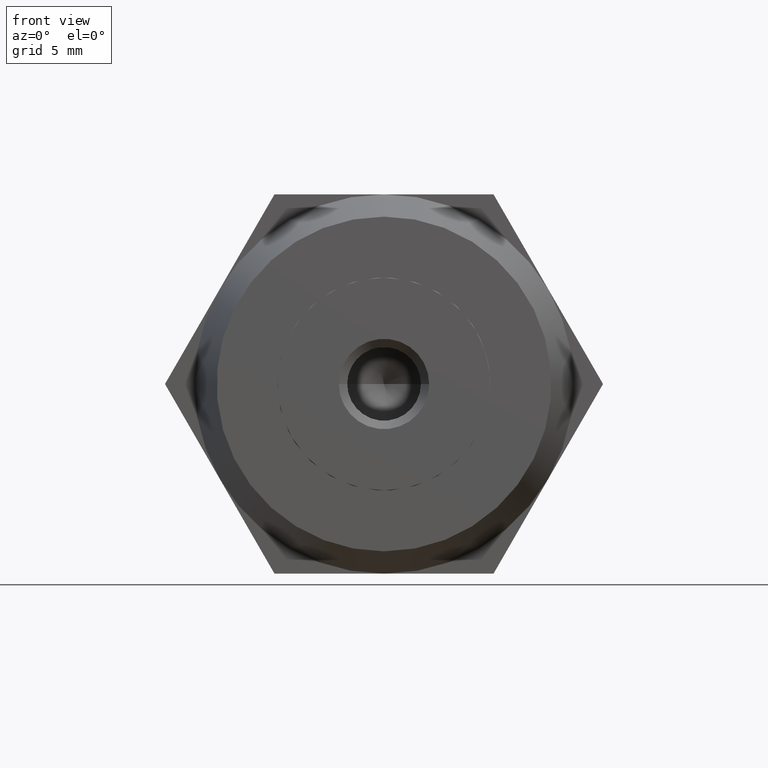
[diagram: clean part render]
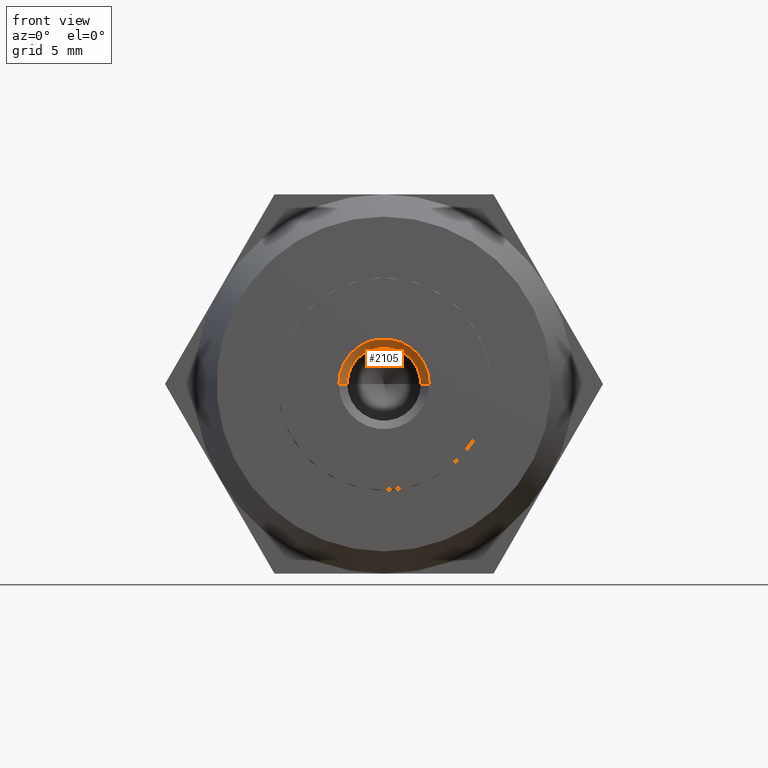
[diagram: same view with one face highlighted and labeled with its STEP entity id]
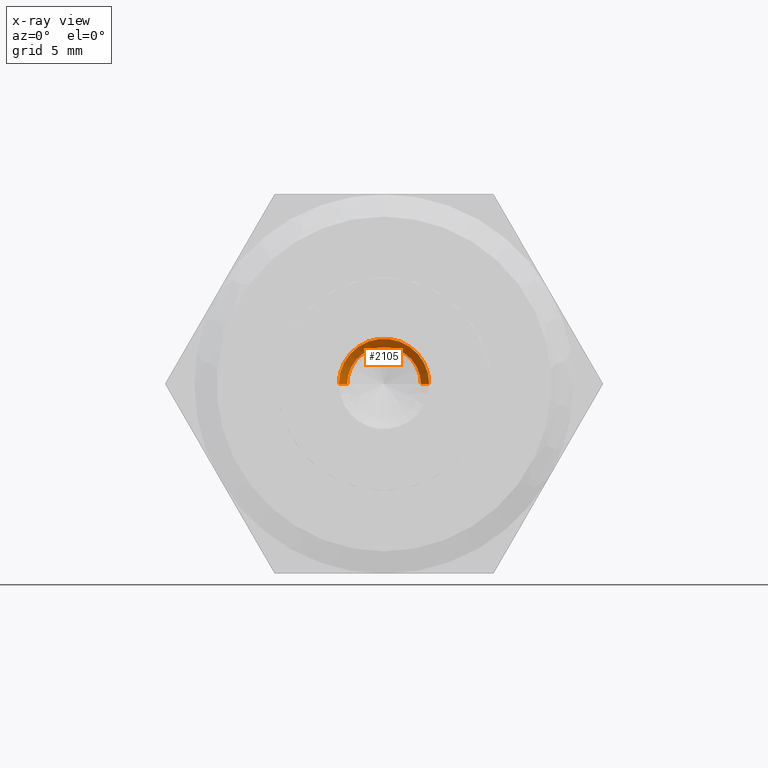
[diagram: x-ray of the same camera — body ghosted, the highlighted face saturated]
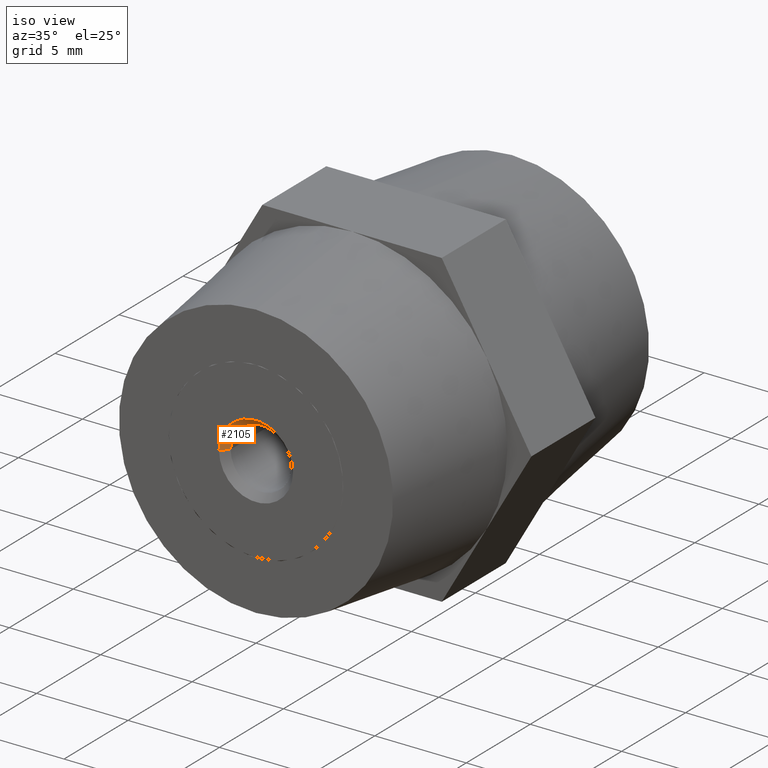
[diagram: same view with one face highlighted and labeled with its STEP entity id]
A machine part, front view. The second image highlights one B-rep face of the part: STEP entity #2105.
The next image is the same camera in x-ray: the body ghosted, the highlighted face saturated — about 0% of this face is hidden behind the body in this view.
A second angle (iso view) of the same face is appended — the face is thin or edge-on in the first view.
In plain terms, the highlighted conical surface has half-angle 45 deg.
Its self-contained STEP definition (entity closure, byte-faithful):
#78 = CARTESIAN_POINT ( 'NONE',  ( 0.0000000000000000000, 6.500000000000000000, 2.024999999999999900 ) ) ;
#82 = CARTESIAN_POINT ( 'NONE',  ( 2.479909768273389800E-016, 6.500000000000000000, -2.024999999999999900 ) ) ;
#103 = DIRECTION ( 'NONE',  ( 0.0000000000000000000, 0.7071067811865470200, 0.7071067811865480200 ) ) ;
#140 = DIRECTION ( 'NONE',  ( 0.0000000000000000000, 0.0000000000000000000, 1.000000000000000000 ) ) ;
#224 = FACE_OUTER_BOUND ( 'NONE', #770, .T. ) ;
#246 = DIRECTION ( 'NONE',  ( 0.0000000000000000000, 0.0000000000000000000, 1.000000000000000000 ) ) ;
#521 = EDGE_CURVE ( 'NONE', #2975, #1603, #1273, .T. ) ;
#567 = VERTEX_POINT ( 'NONE', #2158 ) ;
#770 = EDGE_LOOP ( 'NONE', ( #1065, #2261, #1220, #3234 ) ) ;
#853 = VECTOR ( 'NONE', #103, 1000.000000000000000 ) ;
#873 = CARTESIAN_POINT ( 'NONE',  ( 0.0000000000000000000, 6.125000000000000000, 1.649999999999999900 ) ) ;
#1065 = ORIENTED_EDGE ( 'NONE', *, *, #521, .F. ) ;
#1114 = EDGE_CURVE ( 'NONE', #2598, #2975, #1166, .T. ) ;
#1166 = CIRCLE ( 'NONE', #2487, 1.649999999999999900 ) ;
#1220 = ORIENTED_EDGE ( 'NONE', *, *, #3073, .T. ) ;
#1273 = LINE ( 'NONE', #82, #2401 ) ;
#1310 = CARTESIAN_POINT ( 'NONE',  ( 0.0000000000000000000, 6.500000000000000000, 0.0000000000000000000 ) ) ;
#1315 = DIRECTION ( 'NONE',  ( 0.0000000000000000000, 1.000000000000000000, 0.0000000000000000000 ) ) ;
#1525 = CARTESIAN_POINT ( 'NONE',  ( 2.020667218593132800E-016, 6.125000000000000000, -1.649999999999999900 ) ) ;
#1603 = VERTEX_POINT ( 'NONE', #1660 ) ;
#1644 = AXIS2_PLACEMENT_3D ( 'NONE', #3855, #3589, #246 ) ;
#1653 = LINE ( 'NONE', #78, #853 ) ;
#1658 = DIRECTION ( 'NONE',  ( 0.0000000000000000000, 1.000000000000000000, 0.0000000000000000000 ) ) ;
#1660 = CARTESIAN_POINT ( 'NONE',  ( 2.479909768273389800E-016, 6.500000000000000000, -2.024999999999999900 ) ) ;
#2105 = ADVANCED_FACE ( 'NONE', ( #224 ), #3748, .F. ) ;
#2158 = CARTESIAN_POINT ( 'NONE',  ( 0.0000000000000000000, 6.500000000000000000, 2.024999999999999900 ) ) ;
#2261 = ORIENTED_EDGE ( 'NONE', *, *, #1114, .F. ) ;
#2378 = AXIS2_PLACEMENT_3D ( 'NONE', #1310, #1658, #140 ) ;
#2401 = VECTOR ( 'NONE', #2776, 1000.000000000000000 ) ;
#2487 = AXIS2_PLACEMENT_3D ( 'NONE', #2555, #1315, #3432 ) ;
#2555 = CARTESIAN_POINT ( 'NONE',  ( 0.0000000000000000000, 6.125000000000000000, 0.0000000000000000000 ) ) ;
#2598 = VERTEX_POINT ( 'NONE', #873 ) ;
#2776 = DIRECTION ( 'NONE',  ( 8.659560562354939000E-017, 0.7071067811865470200, -0.7071067811865480200 ) ) ;
#2975 = VERTEX_POINT ( 'NONE', #1525 ) ;
#3073 = EDGE_CURVE ( 'NONE', #2598, #567, #1653, .T. ) ;
#3234 = ORIENTED_EDGE ( 'NONE', *, *, #3467, .T. ) ;
#3427 = CIRCLE ( 'NONE', #1644, 2.024999999999999900 ) ;
#3432 = DIRECTION ( 'NONE',  ( 0.0000000000000000000, 0.0000000000000000000, 1.000000000000000000 ) ) ;
#3467 = EDGE_CURVE ( 'NONE', #567, #1603, #3427, .T. ) ;
#3589 = DIRECTION ( 'NONE',  ( 0.0000000000000000000, 1.000000000000000000, 0.0000000000000000000 ) ) ;
#3748 = CONICAL_SURFACE ( 'NONE', #2378, 2.024999999999999900, 0.7853981633974490600 ) ;
#3855 = CARTESIAN_POINT ( 'NONE',  ( 0.0000000000000000000, 6.500000000000000000, 0.0000000000000000000 ) ) ;